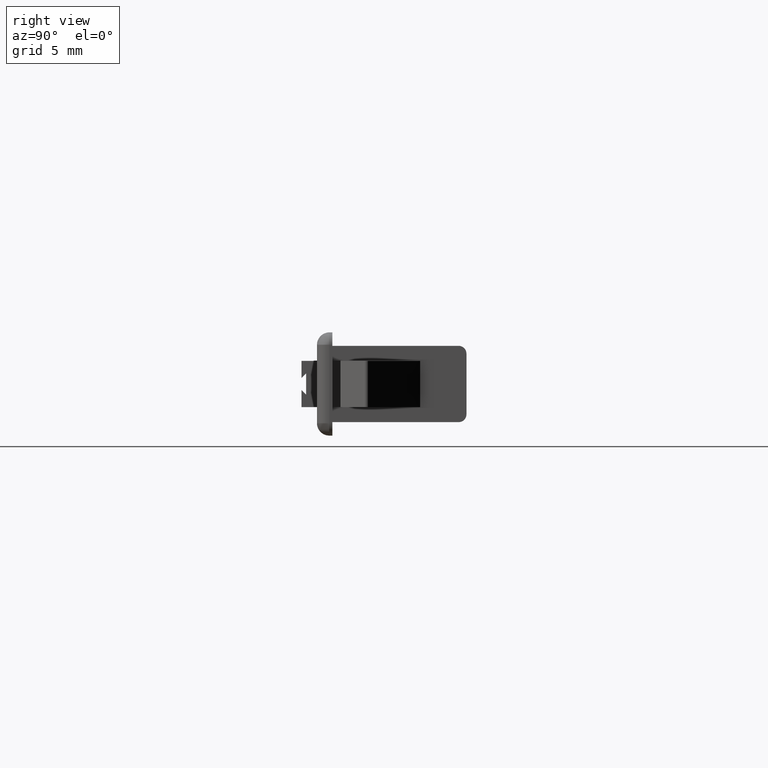
[diagram: clean part render]
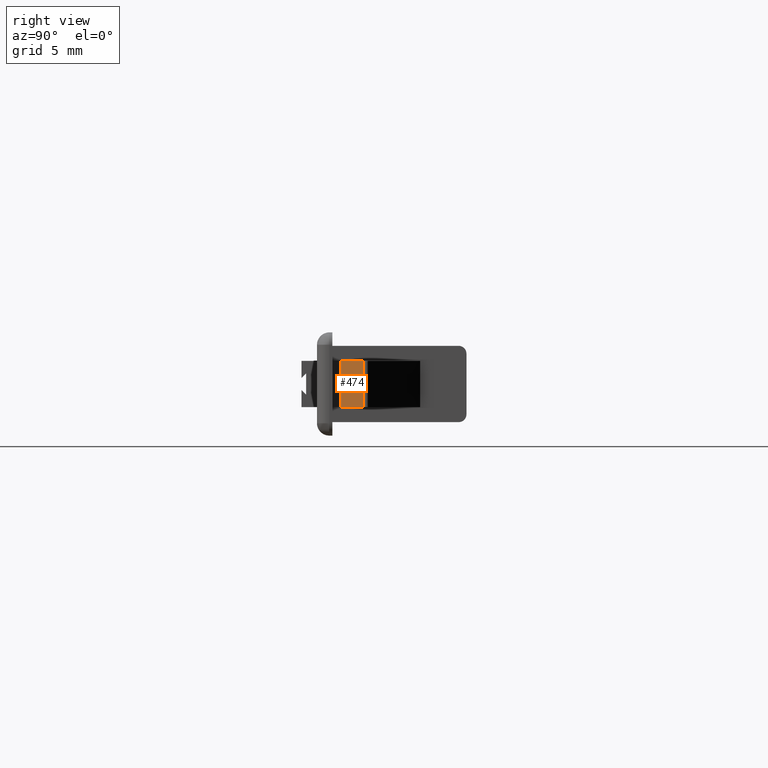
[diagram: same view with one face highlighted and labeled with its STEP entity id]
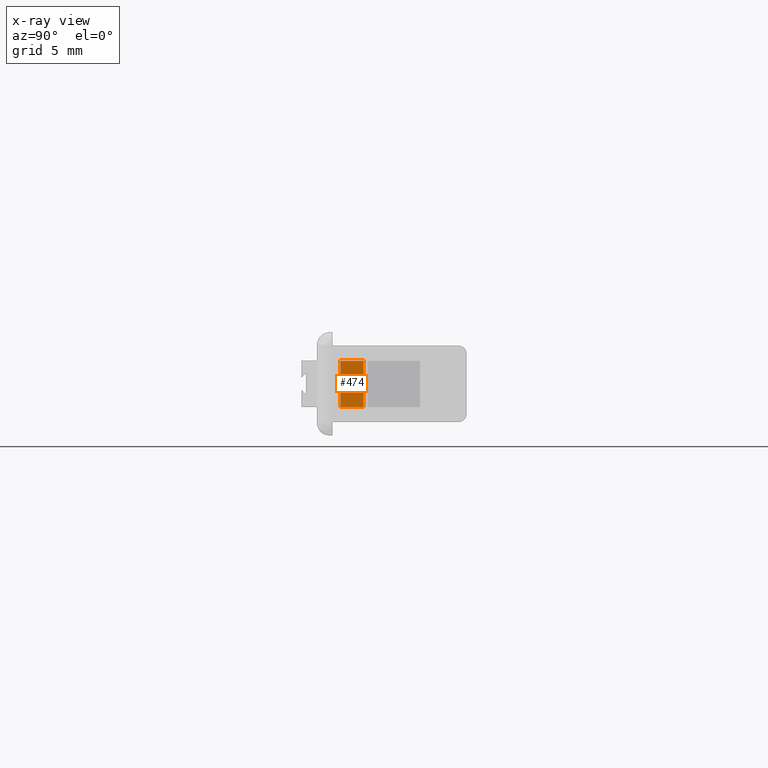
[diagram: x-ray of the same camera — body ghosted, the highlighted face saturated]
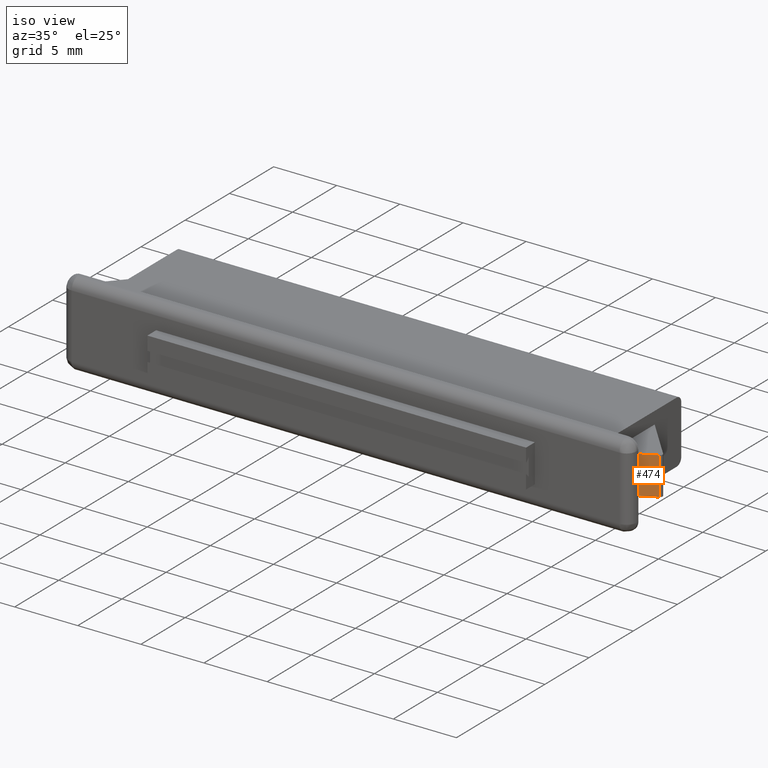
[diagram: same view with one face highlighted and labeled with its STEP entity id]
A machine part, right view. The second image highlights one B-rep face of the part: STEP entity #474.
The next image is the same camera in x-ray: the body ghosted, the highlighted face saturated — about 0% of this face is hidden behind the body in this view.
A second angle (iso view) of the same face is appended — the face is thin or edge-on in the first view.
In plain terms, the highlighted face is a freeform B-spline surface patch.
Its self-contained STEP definition (entity closure, byte-faithful):
#439=CARTESIAN_POINT('',(19.651760217025821,-8.266006492559976,-1.649849994185418));
#440=CARTESIAN_POINT('',(22.916003400639759,-6.602791517175388,-1.649849994185418));
#441=CARTESIAN_POINT('',(19.651760217025821,-8.266006492559976,1.649850074651688));
#442=CARTESIAN_POINT('',(22.916003400639759,-6.602791517175388,1.649850074651688));
#443=B_SPLINE_SURFACE_WITH_KNOTS('',1,1,((#439,#441),(#440,#442)),.UNSPECIFIED.,.F.,.F.,.U.,(2,2),(2,2),(0.0,3.663545770986575),(0.0,3.299700068837106),.UNSPECIFIED.);
#444=CARTESIAN_POINT('',(22.767763538063949,-6.678323499787080,-1.499999999999946));
#445=VERTEX_POINT('',#444);
#446=CARTESIAN_POINT('',(19.800000000000001,-8.190474550507309,-1.500000000000000));
#447=VERTEX_POINT('',#446);
#448=CARTESIAN_POINT('',(22.767763538063949,-6.678323499787080,-1.499999999999946));
#449=CARTESIAN_POINT('',(19.800000000000001,-8.190474550507309,-1.500000000000000));
#450=QUASI_UNIFORM_CURVE('',1,(#448,#449),.UNSPECIFIED.,.F.,.U.);
#451=EDGE_CURVE('',#445,#447,#450,.T.);
#452=ORIENTED_EDGE('',*,*,#451,.F.);
#453=CARTESIAN_POINT('',(22.767763538063949,-6.678323499787080,1.499999999999946));
#454=VERTEX_POINT('',#453);
#455=CARTESIAN_POINT('',(22.767763538063949,-6.678323499787080,1.499999999999946));
#456=CARTESIAN_POINT('',(22.767763538063949,-6.678323499787080,-1.499999999999946));
#457=QUASI_UNIFORM_CURVE('',1,(#455,#456),.UNSPECIFIED.,.F.,.U.);
#458=EDGE_CURVE('',#454,#445,#457,.T.);
#459=ORIENTED_EDGE('',*,*,#458,.F.);
#460=CARTESIAN_POINT('',(19.800000000000001,-8.190474550507219,1.500000000000000));
#461=VERTEX_POINT('',#460);
#462=CARTESIAN_POINT('',(22.767763538063949,-6.678323499787080,1.499999999999946));
#463=CARTESIAN_POINT('',(19.800000000000001,-8.190474550507219,1.500000000000000));
#464=QUASI_UNIFORM_CURVE('',1,(#462,#463),.UNSPECIFIED.,.F.,.U.);
#465=EDGE_CURVE('',#454,#461,#464,.T.);
#466=ORIENTED_EDGE('',*,*,#465,.T.);
#467=CARTESIAN_POINT('',(19.800000000000001,-8.190474550507219,1.500000000000000));
#468=CARTESIAN_POINT('',(19.800000000000001,-8.190474550507309,-1.500000000000000));
#469=QUASI_UNIFORM_CURVE('',1,(#467,#468),.UNSPECIFIED.,.F.,.U.);
#470=EDGE_CURVE('',#461,#447,#469,.T.);
#471=ORIENTED_EDGE('',*,*,#470,.T.);
#472=EDGE_LOOP('',(#452,#459,#466,#471));
#473=FACE_OUTER_BOUND('',#472,.T.);
#474=ADVANCED_FACE('',(#473),#443,.T.);